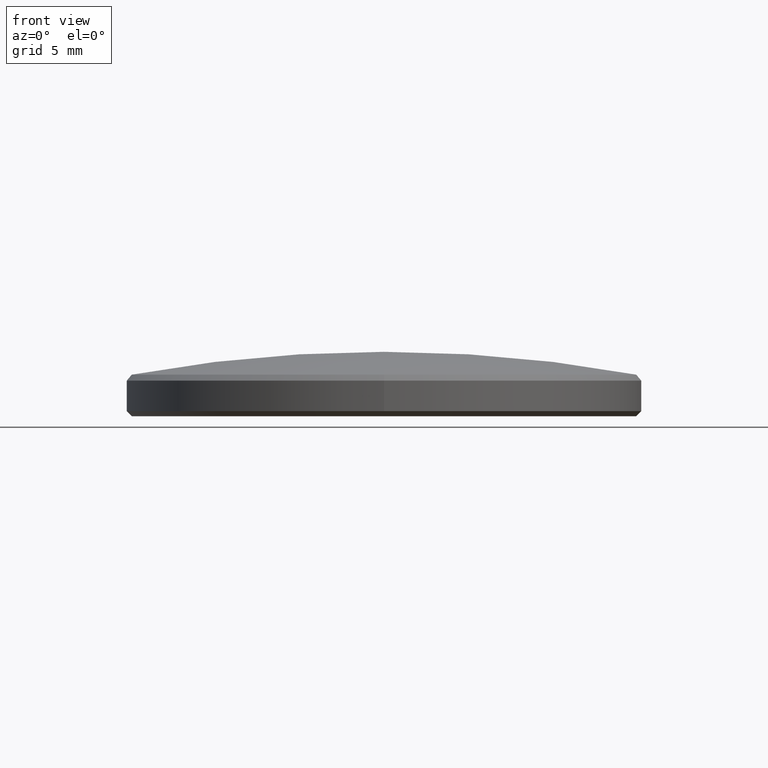
[diagram: clean part render]
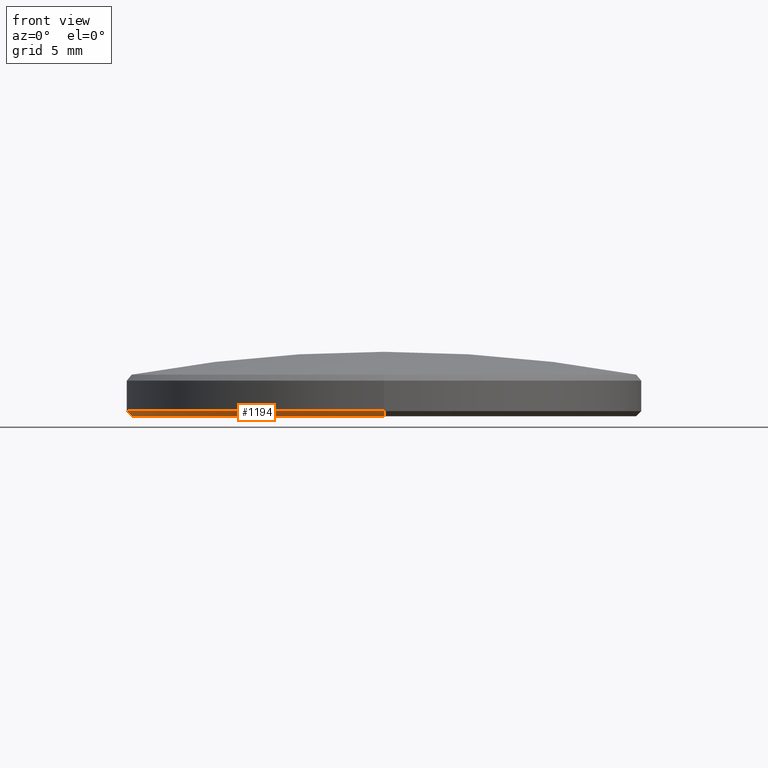
[diagram: same view with one face highlighted and labeled with its STEP entity id]
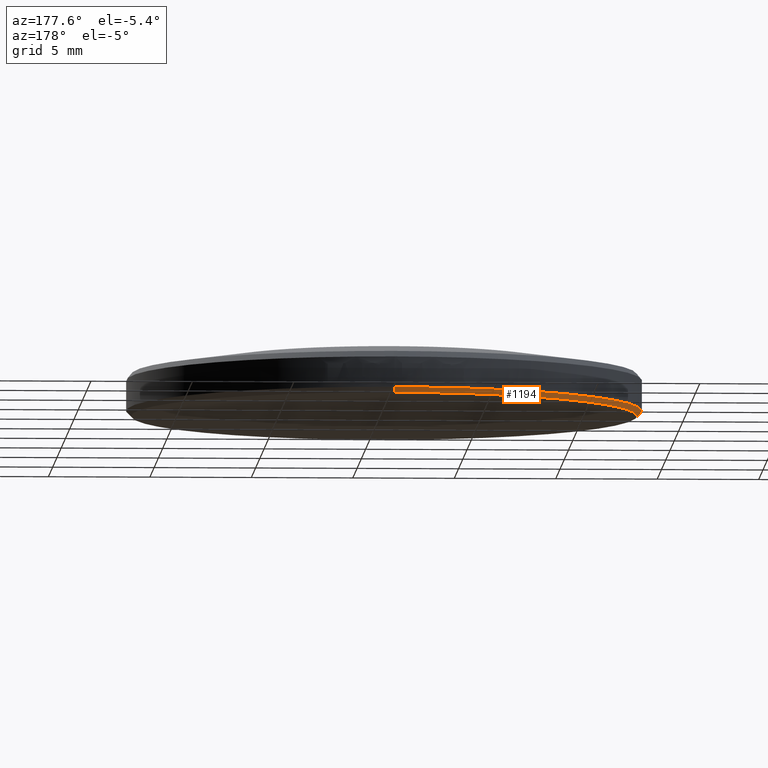
[diagram: same view with one face highlighted and labeled with its STEP entity id]
A machine part, front view. The second image highlights one B-rep face of the part: STEP entity #1194.
A second angle (auxiliary view) of the same face is appended — the face is thin or edge-on in the first view.
In plain terms, the highlighted conical surface has half-angle 45 deg.
Its self-contained STEP definition (entity closure, byte-faithful):
#41 = CARTESIAN_POINT ( 'NONE',  ( -0.01648550022812553251, 0.8537685930331552209, 0.7360616388966217949 ) ) ;
#90 = VERTEX_POINT ( 'NONE', #1301 ) ;
#288 = VERTEX_POINT ( 'NONE', #725 ) ;
#321 = VERTEX_POINT ( 'NONE', #746 ) ;
#344 = EDGE_CURVE ( 'NONE', #321, #1358, #1090, .T. ) ;
#408 = DIRECTION ( 'NONE',  ( 0.0000000000000000000, 1.000000000000000000, 0.0000000000000000000 ) ) ;
#559 = EDGE_CURVE ( 'NONE', #90, #288, #610, .T. ) ;
#560 = CARTESIAN_POINT ( 'NONE',  ( -0.01648550022812547006, 0.3537685930331552764, 0.7459041585816611475 ) ) ;
#610 = CIRCLE ( 'NONE', #1037, 0.4901574803149604809 ) ;
#633 = VECTOR ( 'NONE', #2463, 39.37007874015748143 ) ;
#725 = CARTESIAN_POINT ( 'NONE',  ( -0.01648550022812547353, 1.343926073348115757, 0.7360616388966217949 ) ) ;
#734 = DIRECTION ( 'NONE',  ( 0.0000000000000000000, 1.000000000000000000, 0.0000000000000000000 ) ) ;
#740 = DIRECTION ( 'NONE',  ( 0.0000000000000000000, -1.224646799147353207E-16, 1.000000000000000000 ) ) ;
#746 = CARTESIAN_POINT ( 'NONE',  ( -0.01648550022812553251, 1.353768593033155110, 0.7459041585816611475 ) ) ;
#793 = AXIS2_PLACEMENT_3D ( 'NONE', #1637, #1187, #734 ) ;
#833 = DIRECTION ( 'NONE',  ( 8.659560562354934091E-17, 0.7071067811865474617, 0.7071067811865475727 ) ) ;
#918 = VECTOR ( 'NONE', #833, 39.37007874015748143 ) ;
#961 = DIRECTION ( 'NONE',  ( 0.0000000000000000000, -1.000000000000000000, 0.0000000000000000000 ) ) ;
#1037 = AXIS2_PLACEMENT_3D ( 'NONE', #2129, #1709, #408 ) ;
#1067 = EDGE_CURVE ( 'NONE', #288, #321, #1505, .T. ) ;
#1090 = CIRCLE ( 'NONE', #793, 0.4999999999999998335 ) ;
#1153 = CARTESIAN_POINT ( 'NONE',  ( -0.01648550022812553251, 0.3636111127181946290, 0.7360616388966217949 ) ) ;
#1187 = DIRECTION ( 'NONE',  ( 0.0000000000000000000, -1.224646799147353207E-16, 1.000000000000000000 ) ) ;
#1194 = ADVANCED_FACE ( 'NONE', ( #2708 ), #1250, .T. ) ;
#1250 = CONICAL_SURFACE ( 'NONE', #1689, 0.4901574803149605364, 0.7853981633974483900 ) ;
#1301 = CARTESIAN_POINT ( 'NONE',  ( -0.01648550022812553251, 0.3636111127181945735, 0.7360616388966217949 ) ) ;
#1355 = ORIENTED_EDGE ( 'NONE', *, *, #1067, .F. ) ;
#1358 = VERTEX_POINT ( 'NONE', #560 ) ;
#1393 = EDGE_LOOP ( 'NONE', ( #1355, #2514, #2348, #2767 ) ) ;
#1505 = LINE ( 'NONE', #2126, #918 ) ;
#1637 = CARTESIAN_POINT ( 'NONE',  ( -0.01648550022812553251, 0.8537685930331552209, 0.7459041585816611475 ) ) ;
#1689 = AXIS2_PLACEMENT_3D ( 'NONE', #41, #740, #961 ) ;
#1709 = DIRECTION ( 'NONE',  ( -0.0000000000000000000, 1.224646799147353207E-16, -1.000000000000000000 ) ) ;
#2126 = CARTESIAN_POINT ( 'NONE',  ( -0.01648550022812547353, 1.343926073348115757, 0.7360616388966217949 ) ) ;
#2129 = CARTESIAN_POINT ( 'NONE',  ( -0.01648550022812553251, 0.8537685930331552209, 0.7360616388966217949 ) ) ;
#2150 = EDGE_CURVE ( 'NONE', #90, #1358, #2279, .T. ) ;
#2279 = LINE ( 'NONE', #1153, #633 ) ;
#2348 = ORIENTED_EDGE ( 'NONE', *, *, #2150, .T. ) ;
#2463 = DIRECTION ( 'NONE',  ( 0.0000000000000000000, -0.7071067811865476838, 0.7071067811865473507 ) ) ;
#2514 = ORIENTED_EDGE ( 'NONE', *, *, #559, .F. ) ;
#2708 = FACE_OUTER_BOUND ( 'NONE', #1393, .T. ) ;
#2767 = ORIENTED_EDGE ( 'NONE', *, *, #344, .F. ) ;